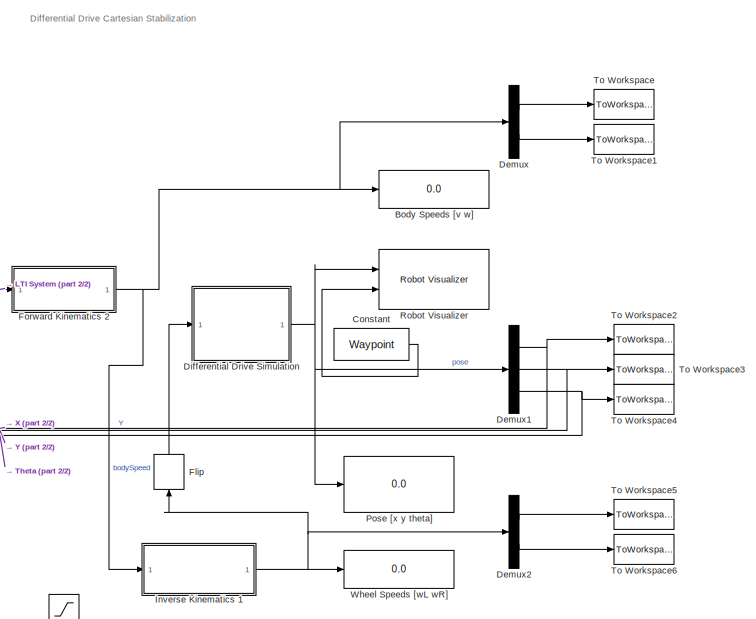
[diagram: root canvas - part 1/2, right side, full height]
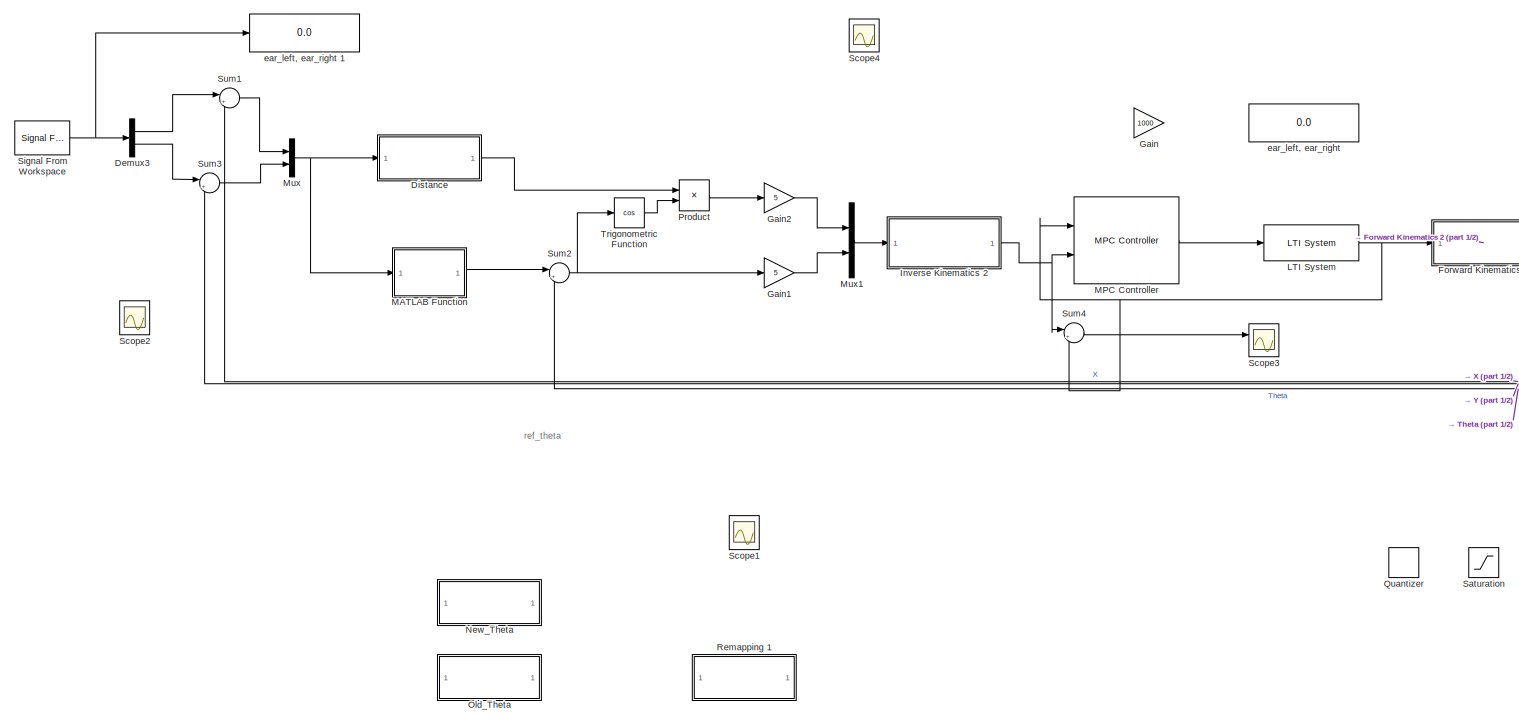
[diagram: root canvas - part 2/2, center side, full height]
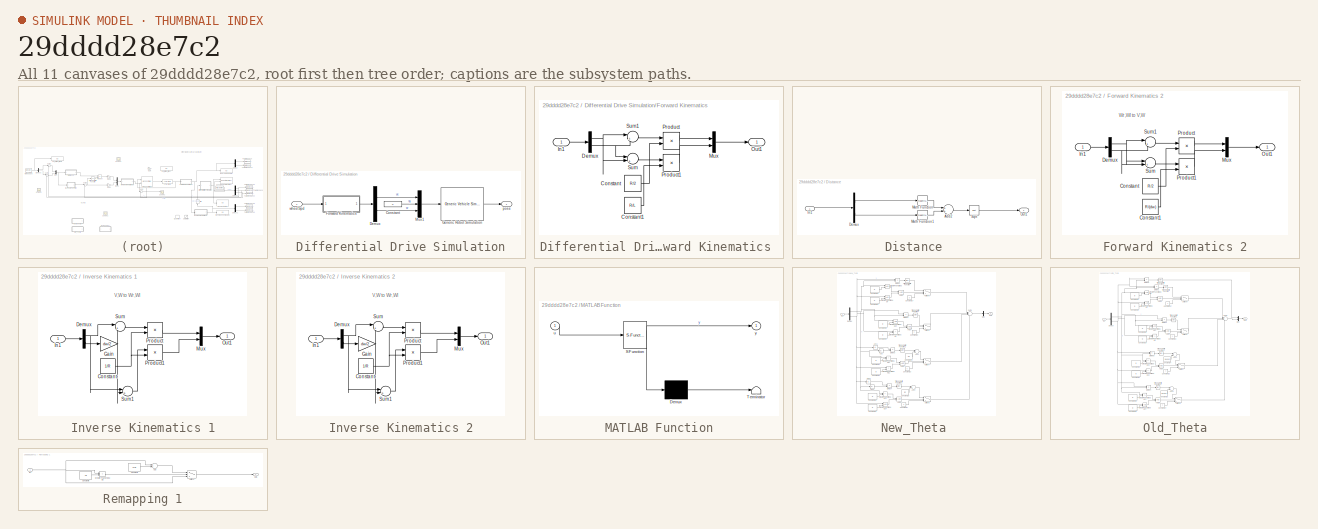
[diagram: thumbnail index - all 11 canvases of the model, root first then tree order]
MODEL slx_29dddd28e7c2
KIND model
CONFIG AbsTol = auto
CONFIG EnableMultiTasking = on
CONFIG FixedStep = 0.01
CONFIG MaxStep = auto
CONFIG MinStep = auto
CONFIG PreLoadFcn = sampleTime = 0.05;\n\n% Vehicle Parameters\nR = 0.1;\nL = 0.5;
CONFIG RelTol = 1e-3
CONFIG SampleTimeConstraint = Unconstrained
CONFIG Solver = VariableStepAuto
CONFIG SolverName = VariableStepAuto
CONFIG StartTime = 0.0
CONFIG StopTime = inf
BLOCK [Display] Body Speeds [v w]
  Decimation = 1
  Ports = [1]
BLOCK [Constant] Constant
  SampleTime = sampleTime
  Value = Waypoint
BLOCK [Demux] Demux
  DisplayOption = bar
  Outputs = 2
  Ports = [1, 2]
BLOCK [Demux] Demux1
  DisplayOption = bar
  Outputs = 3
  Ports = [1, 3]
BLOCK [Demux] Demux2
  DisplayOption = bar
  Outputs = 2
  Ports = [1, 2]
BLOCK [Demux] Demux3
  DisplayOption = bar
  Outputs = 2
  Ports = [1, 2]
BLOCK [SubSystem] Differential Drive Simulation
  AncestorBlock = mobileRoboticsLib/Kinematic Models/Differential Drive/Differential Drive Simulation
  OverrideUsingVariant = mode==2
  Ports = [1, 1]
  RequestExecContextInheritance = off
BLOCK [Constant] Differential Drive Simulation/Constant
  Value = 0
BLOCK [Demux] Differential Drive Simulation/Demux
  DisplayOption = bar
  Outputs = 2
  Ports = [1, 2]
BLOCK [SubSystem] Differential Drive Simulation/Forward Kinematics 
  Ports = [1, 1]
  RequestExecContextInheritance = off
BLOCK [Constant] Differential Drive Simulation/Forward Kinematics /Constant
  Value = R/2
BLOCK [Constant] Differential Drive Simulation/Forward Kinematics /Constant1
  Value = R/L
BLOCK [Demux] Differential Drive Simulation/Forward Kinematics /Demux
  DisplayOption = bar
  Outputs = 2
  Ports = [1, 2]
BLOCK [Inport] Differential Drive Simulation/Forward Kinematics /In1
  IconDisplay = Port number
BLOCK [Mux] Differential Drive Simulation/Forward Kinematics /Mux
  DisplayOption = bar
  Inputs = 2
  Ports = [2, 1]
BLOCK [Outport] Differential Drive Simulation/Forward Kinematics /Out1
  IconDisplay = Port number
BLOCK [Product] Differential Drive Simulation/Forward Kinematics /Product
  InputSameDT = off
  OutDataTypeStr = Inherit: Inherit via internal rule
  Ports = [2, 1]
  RndMeth = Floor
  SaturateOnIntegerOverflow = off
BLOCK [Product] Differential Drive Simulation/Forward Kinematics /Product1
  InputSameDT = off
  OutDataTypeStr = Inherit: Inherit via internal rule
  Ports = [2, 1]
  RndMeth = Floor
  SaturateOnIntegerOverflow = off
BLOCK [Sum] Differential Drive Simulation/Forward Kinematics /Sum
  IconShape = round
  InputSameDT = off
  Inputs = |+-
  OutDataTypeStr = Inherit: Inherit via internal rule
  Ports = [2, 1]
  SaturateOnIntegerOverflow = off
BLOCK [Sum] Differential Drive Simulation/Forward Kinematics /Sum1
  IconShape = round
  InputSameDT = off
  Inputs = |++
  OutDataTypeStr = Inherit: Inherit via internal rule
  Ports = [2, 1]
  SaturateOnIntegerOverflow = off
BLOCK [Reference] Differential Drive Simulation/Generic Robot Simulation  REF=mobileRoboticsLib/Utilities/Generic Vehicle Simulation
  Ports = [1, 1]
  SourceBlock = mobileRoboticsLib/Utilities/Generic Vehicle Simulation
  SourceProductName = Mobile Robotics Simulation Toolbox
  SourceType = Generic Vehicle Simulation
BLOCK [Mux] Differential Drive Simulation/Mux1
  DisplayOption = bar
  Inputs = 3
  Ports = [3, 1]
BLOCK [Outport] Differential Drive Simulation/pose
  IconDisplay = Port number
BLOCK [Inport] Differential Drive Simulation/wheelSpd
  IconDisplay = Port number
BLOCK [SubSystem] Distance 
  Ports = [1, 1]
  RequestExecContextInheritance = off
BLOCK [Sum] Distance /Add2
  InputSameDT = off
  OutDataTypeStr = Inherit: Inherit via internal rule
  Ports = [2, 1]
  SaturateOnIntegerOverflow = off
BLOCK [Demux] Distance /Demux
  DisplayOption = bar
  Outputs = 2
  Ports = [1, 2]
BLOCK [Inport] Distance /In1
  IconDisplay = Port number
BLOCK [Math] Distance /Math Function
  Operator = magnitude^2
  Ports = [1, 1]
BLOCK [Math] Distance /Math Function1
  Operator = magnitude^2
  Ports = [1, 1]
BLOCK [Outport] Distance /Out1
  IconDisplay = Port number
BLOCK [Sqrt] Distance /Sqrt
BLOCK [DSPFlip] Flip
BLOCK [SubSystem] Forward Kinematics 2
  Ports = [1, 1]
  RequestExecContextInheritance = off
BLOCK [Constant] Forward Kinematics 2/Constant
  Value = R/2
BLOCK [Constant] Forward Kinematics 2/Constant1
  Value = R/(dw)
BLOCK [Demux] Forward Kinematics 2/Demux
  DisplayOption = bar
  Outputs = 2
  Ports = [1, 2]
BLOCK [Inport] Forward Kinematics 2/In1
  IconDisplay = Port number
BLOCK [Mux] Forward Kinematics 2/Mux
  DisplayOption = bar
  Inputs = 2
  Ports = [2, 1]
BLOCK [Outport] Forward Kinematics 2/Out1
  IconDisplay = Port number
BLOCK [Product] Forward Kinematics 2/Product
  InputSameDT = off
  OutDataTypeStr = Inherit: Inherit via internal rule
  Ports = [2, 1]
  RndMeth = Floor
  SaturateOnIntegerOverflow = off
BLOCK [Product] Forward Kinematics 2/Product1
  InputSameDT = off
  OutDataTypeStr = Inherit: Inherit via internal rule
  Ports = [2, 1]
  RndMeth = Floor
  SaturateOnIntegerOverflow = off
BLOCK [Sum] Forward Kinematics 2/Sum
  IconShape = round
  InputSameDT = off
  Inputs = |+-
  OutDataTypeStr = Inherit: Inherit via internal rule
  Ports = [2, 1]
  SaturateOnIntegerOverflow = off
BLOCK [Sum] Forward Kinematics 2/Sum1
  IconShape = round
  InputSameDT = off
  Inputs = |++
  OutDataTypeStr = Inherit: Inherit via internal rule
  Ports = [2, 1]
  SaturateOnIntegerOverflow = off
BLOCK [Gain] Gain
  Gain = 1000
  OutDataTypeStr = Inherit: Inherit via internal rule
  ParamDataTypeStr = Inherit: Inherit via internal rule
  SaturateOnIntegerOverflow = off
BLOCK [Gain] Gain1
  Gain = 5
  OutDataTypeStr = Inherit: Inherit via internal rule
  ParamDataTypeStr = Inherit: Inherit via internal rule
  SaturateOnIntegerOverflow = off
BLOCK [Gain] Gain2
  Gain = 5
  OutDataTypeStr = Inherit: Inherit via internal rule
  ParamDataTypeStr = Inherit: Inherit via internal rule
  SaturateOnIntegerOverflow = off
BLOCK [SubSystem] Inverse Kinematics 1
  Ports = [1, 1]
  RequestExecContextInheritance = off
BLOCK [Constant] Inverse Kinematics 1/Constant
  Value = 1/R
BLOCK [Demux] Inverse Kinematics 1/Demux
  DisplayOption = bar
  Outputs = 2
  Ports = [1, 2]
BLOCK [Gain] Inverse Kinematics 1/Gain
  Gain = dw/2
  OutDataTypeStr = Inherit: Inherit via internal rule
  ParamDataTypeStr = Inherit: Inherit via internal rule
  SaturateOnIntegerOverflow = off
BLOCK [Inport] Inverse Kinematics 1/In1
  IconDisplay = Port number
BLOCK [Mux] Inverse Kinematics 1/Mux
  DisplayOption = bar
  Inputs = 2
  Ports = [2, 1]
BLOCK [Outport] Inverse Kinematics 1/Out1
  IconDisplay = Port number
BLOCK [Product] Inverse Kinematics 1/Product
  InputSameDT = off
  OutDataTypeStr = Inherit: Inherit via internal rule
  Ports = [2, 1]
  RndMeth = Floor
  SaturateOnIntegerOverflow = off
BLOCK [Product] Inverse Kinematics 1/Product1
  InputSameDT = off
  OutDataTypeStr = Inherit: Inherit via internal rule
  Ports = [2, 1]
  RndMeth = Floor
  SaturateOnIntegerOverflow = off
BLOCK [Sum] Inverse Kinematics 1/Sum
  IconShape = round
  InputSameDT = off
  Inputs = |++
  OutDataTypeStr = Inherit: Inherit via internal rule
  Ports = [2, 1]
  SaturateOnIntegerOverflow = off
BLOCK [Sum] Inverse Kinematics 1/Sum1
  IconShape = round
  InputSameDT = off
  Inputs = |+-
  OutDataTypeStr = Inherit: Inherit via internal rule
  Ports = [2, 1]
  SaturateOnIntegerOverflow = off
BLOCK [SubSystem] Inverse Kinematics 2
  Ports = [1, 1]
  RequestExecContextInheritance = off
BLOCK [Constant] Inverse Kinematics 2/Constant
  Value = 1/R
BLOCK [Demux] Inverse Kinematics 2/Demux
  DisplayOption = bar
  Outputs = 2
  Ports = [1, 2]
BLOCK [Gain] Inverse Kinematics 2/Gain
  Gain = dw/2
  OutDataTypeStr = Inherit: Inherit via internal rule
  ParamDataTypeStr = Inherit: Inherit via internal rule
  SaturateOnIntegerOverflow = off
BLOCK [Inport] Inverse Kinematics 2/In1
  IconDisplay = Port number
BLOCK [Mux] Inverse Kinematics 2/Mux
  DisplayOption = bar
  Inputs = 2
  Ports = [2, 1]
BLOCK [Outport] Inverse Kinematics 2/Out1
  IconDisplay = Port number
BLOCK [Product] Inverse Kinematics 2/Product
  InputSameDT = off
  OutDataTypeStr = Inherit: Inherit via internal rule
  Ports = [2, 1]
  RndMeth = Floor
  SaturateOnIntegerOverflow = off
BLOCK [Product] Inverse Kinematics 2/Product1
  InputSameDT = off
  OutDataTypeStr = Inherit: Inherit via internal rule
  Ports = [2, 1]
  RndMeth = Floor
  SaturateOnIntegerOverflow = off
BLOCK [Sum] Inverse Kinematics 2/Sum
  IconShape = round
  InputSameDT = off
  Inputs = |++
  OutDataTypeStr = Inherit: Inherit via internal rule
  Ports = [2, 1]
  SaturateOnIntegerOverflow = off
BLOCK [Sum] Inverse Kinematics 2/Sum1
  IconShape = round
  InputSameDT = off
  Inputs = |+-
  OutDataTypeStr = Inherit: Inherit via internal rule
  Ports = [2, 1]
  SaturateOnIntegerOverflow = off
BLOCK [Reference] LTI System  REF=cstblocks/LTI System
  Ports = [1, 1]
  SourceBlock = cstblocks/LTI System
  SourceProductBaseCode = CT
  SourceProductName = Control System Toolbox
  SourceType = LTI Block
BLOCK [SubSystem] MATLAB Function
  ErrorFcn = Stateflow.Translate.translate
  PermitHierarchicalResolution = ExplicitOnly
  Ports = [1, 1]
  RequestExecContextInheritance = off
  SFBlockType = MATLAB Function
  TreatAsAtomicUnit = on
BLOCK [Demux] MATLAB Function/ Demux 
  Outputs = 1
  Ports = [1, 1]
BLOCK [S-Function] MATLAB Function/ SFunction 
  EnableBusSupport = on
  FunctionName = sf_sfun
  PortCounts = [1 2]
  Ports = [1, 2]
  SFcnIsStateOwnerBlock = off
  SFunctionDeploymentMode = off
  Tag = Stateflow S-Function Cartesian_MPC 2
BLOCK [Terminator] MATLAB Function/ Terminator 
BLOCK [Inport] MATLAB Function/u
  IconDisplay = Port number
BLOCK [Outport] MATLAB Function/y
  IconDisplay = Port number
BLOCK [Reference] MPC Controller  REF=mpclib/MPC Controller  (lib defined in mdl_ae329e0e0455)
  Ports = [2, 1]
  SCDEnableBlockLinearizationSpecification = on
  SourceBlock = mpclib/MPC Controller
  SourceProductBaseCode = MP
  SourceProductName = Model Predictive Control Toolbox
  SourceType = MPC
BLOCK [Mux] Mux
  DisplayOption = bar
  Inputs = 2
  Ports = [2, 1]
BLOCK [Mux] Mux1
  DisplayOption = bar
  Inputs = 2
  Ports = [2, 1]
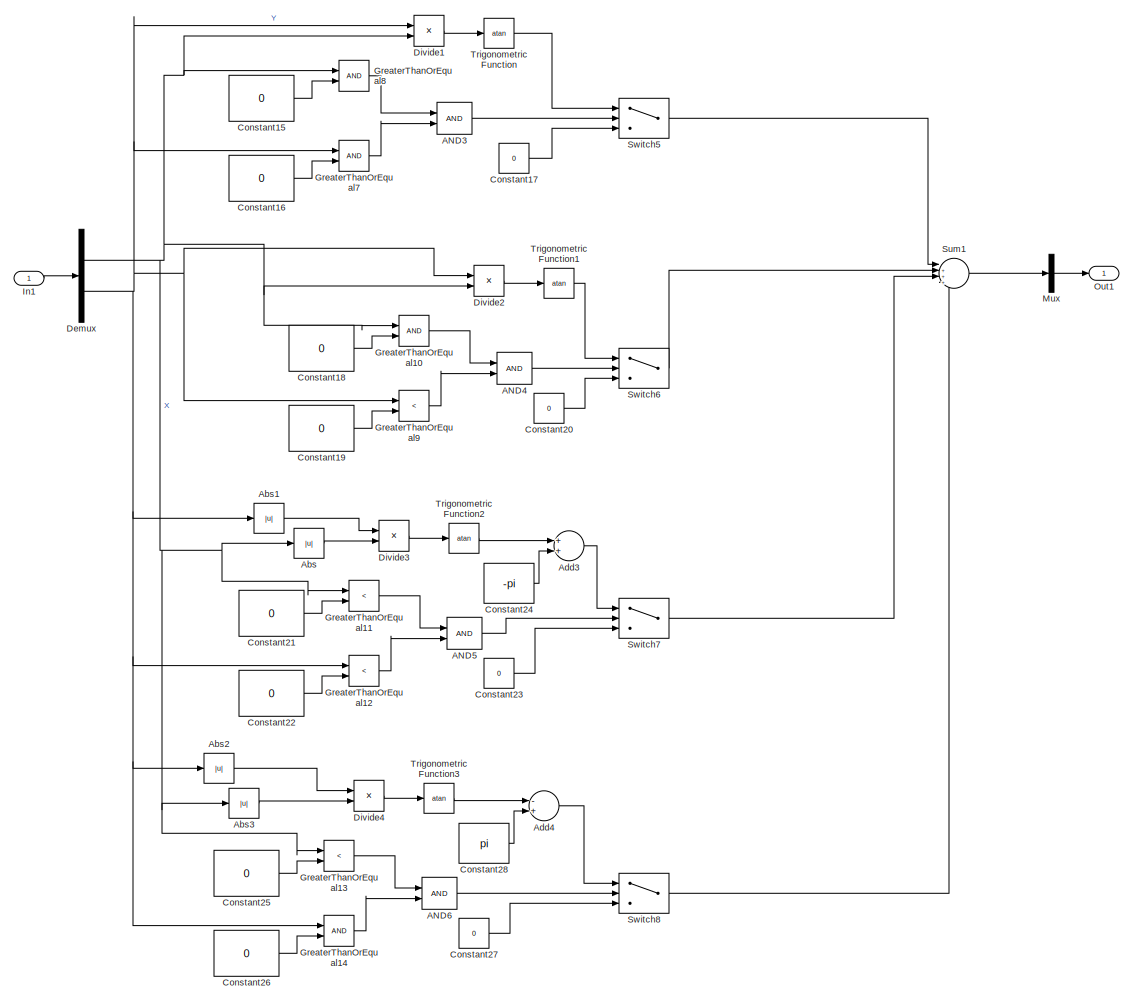
[diagram: New_Theta  - part 1/1, most of the canvas]
BLOCK [SubSystem] New_Theta 
  Ports = [1, 1]
  RequestExecContextInheritance = off
BLOCK [Logic] New_Theta /AND3
  AllPortsSameDT = off
  IconShape = distinctive
  OutDataTypeStr = boolean
  Ports = [2, 1]
BLOCK [Logic] New_Theta /AND4
  AllPortsSameDT = off
  IconShape = distinctive
  OutDataTypeStr = boolean
  Ports = [2, 1]
BLOCK [Logic] New_Theta /AND5
  AllPortsSameDT = off
  IconShape = distinctive
  OutDataTypeStr = boolean
  Ports = [2, 1]
BLOCK [Logic] New_Theta /AND6
  AllPortsSameDT = off
  IconShape = distinctive
  OutDataTypeStr = boolean
  Ports = [2, 1]
BLOCK [Abs] New_Theta /Abs
  SaturateOnIntegerOverflow = off
BLOCK [Abs] New_Theta /Abs1
  SaturateOnIntegerOverflow = off
BLOCK [Abs] New_Theta /Abs2
  SaturateOnIntegerOverflow = off
BLOCK [Abs] New_Theta /Abs3
  SaturateOnIntegerOverflow = off
BLOCK [Sum] New_Theta /Add3
  InputSameDT = off
  OutDataTypeStr = Inherit: Inherit via internal rule
  Ports = [2, 1]
  SaturateOnIntegerOverflow = off
BLOCK [Sum] New_Theta /Add4
  InputSameDT = off
  Inputs = -+
  OutDataTypeStr = Inherit: Inherit via internal rule
  Ports = [2, 1]
  SaturateOnIntegerOverflow = off
BLOCK [Constant] New_Theta /Constant15
  Value = 0
BLOCK [Constant] New_Theta /Constant16
  Value = 0
BLOCK [Constant] New_Theta /Constant17
  Value = 0
BLOCK [Constant] New_Theta /Constant18
  Value = 0
BLOCK [Constant] New_Theta /Constant19
  Value = 0
BLOCK [Constant] New_Theta /Constant20
  Value = 0
BLOCK [Constant] New_Theta /Constant21
  Value = 0
BLOCK [Constant] New_Theta /Constant22
  Value = 0
BLOCK [Constant] New_Theta /Constant23
  Value = 0
BLOCK [Constant] New_Theta /Constant24
  Value = -pi
BLOCK [Constant] New_Theta /Constant25
  Value = 0
BLOCK [Constant] New_Theta /Constant26
  Value = 0
BLOCK [Constant] New_Theta /Constant27
  Value = 0
BLOCK [Constant] New_Theta /Constant28
  Value = pi
BLOCK [Demux] New_Theta /Demux
  DisplayOption = bar
  Outputs = 2
  Ports = [1, 2]
BLOCK [Product] New_Theta /Divide1
  InputSameDT = off
  Inputs = */
  OutDataTypeStr = Inherit: Inherit via internal rule
  Ports = [2, 1]
  RndMeth = Floor
  SaturateOnIntegerOverflow = off
BLOCK [Product] New_Theta /Divide2
  InputSameDT = off
  Inputs = */
  OutDataTypeStr = Inherit: Inherit via internal rule
  Ports = [2, 1]
  RndMeth = Floor
  SaturateOnIntegerOverflow = off
BLOCK [Product] New_Theta /Divide3
  InputSameDT = off
  Inputs = */
  OutDataTypeStr = Inherit: Inherit via internal rule
  Ports = [2, 1]
  RndMeth = Floor
  SaturateOnIntegerOverflow = off
BLOCK [Product] New_Theta /Divide4
  InputSameDT = off
  Inputs = */
  OutDataTypeStr = Inherit: Inherit via internal rule
  Ports = [2, 1]
  RndMeth = Floor
  SaturateOnIntegerOverflow = off
BLOCK [RelationalOperator] New_Theta /GreaterThanOrEqual10
  InputSameDT = off
  OutDataTypeStr = boolean
  Ports = [2, 1]
  RndMeth = Simplest
BLOCK [RelationalOperator] New_Theta /GreaterThanOrEqual11
  InputSameDT = off
  Operator = <
  OutDataTypeStr = boolean
  Ports = [2, 1]
  RndMeth = Simplest
BLOCK [RelationalOperator] New_Theta /GreaterThanOrEqual12
  InputSameDT = off
  Operator = <
  OutDataTypeStr = boolean
  Ports = [2, 1]
  RndMeth = Simplest
BLOCK [RelationalOperator] New_Theta /GreaterThanOrEqual13
  InputSameDT = off
  Operator = <
  OutDataTypeStr = boolean
  Ports = [2, 1]
  RndMeth = Simplest
BLOCK [RelationalOperator] New_Theta /GreaterThanOrEqual14
  InputSameDT = off
  OutDataTypeStr = boolean
  Ports = [2, 1]
  RndMeth = Simplest
BLOCK [RelationalOperator] New_Theta /GreaterThanOrEqual7
  InputSameDT = off
  OutDataTypeStr = boolean
  Ports = [2, 1]
  RndMeth = Simplest
BLOCK [RelationalOperator] New_Theta /GreaterThanOrEqual8
  InputSameDT = off
  OutDataTypeStr = boolean
  Ports = [2, 1]
  RndMeth = Simplest
BLOCK [RelationalOperator] New_Theta /GreaterThanOrEqual9
  InputSameDT = off
  Operator = <
  OutDataTypeStr = boolean
  Ports = [2, 1]
  RndMeth = Simplest
BLOCK [Inport] New_Theta /In1
  IconDisplay = Port number
BLOCK [Mux] New_Theta /Mux
  DisplayOption = bar
  Inputs = 1
  Ports = [1, 1]
BLOCK [Outport] New_Theta /Out1
  IconDisplay = Port number
BLOCK [Sum] New_Theta /Sum1
  IconShape = round
  InputSameDT = off
  Inputs = |++++
  OutDataTypeStr = Inherit: Inherit via internal rule
  Ports = [4, 1]
  SaturateOnIntegerOverflow = off
BLOCK [Switch] New_Theta /Switch5
  Criteria = u2 > Threshold
  InputSameDT = off
  SaturateOnIntegerOverflow = off
BLOCK [Switch] New_Theta /Switch6
  Criteria = u2 > Threshold
  InputSameDT = off
  SaturateOnIntegerOverflow = off
BLOCK [Switch] New_Theta /Switch7
  Criteria = u2 > Threshold
  InputSameDT = off
  SaturateOnIntegerOverflow = off
BLOCK [Switch] New_Theta /Switch8
  Criteria = u2 > Threshold
  InputSameDT = off
  SaturateOnIntegerOverflow = off
BLOCK [Trigonometry] New_Theta /Trigonometric Function
  Operator = atan
  Ports = [1, 1]
BLOCK [Trigonometry] New_Theta /Trigonometric Function1
  Operator = atan
  Ports = [1, 1]
BLOCK [Trigonometry] New_Theta /Trigonometric Function2
  Operator = atan
  Ports = [1, 1]
BLOCK [Trigonometry] New_Theta /Trigonometric Function3
  Operator = atan
  Ports = [1, 1]
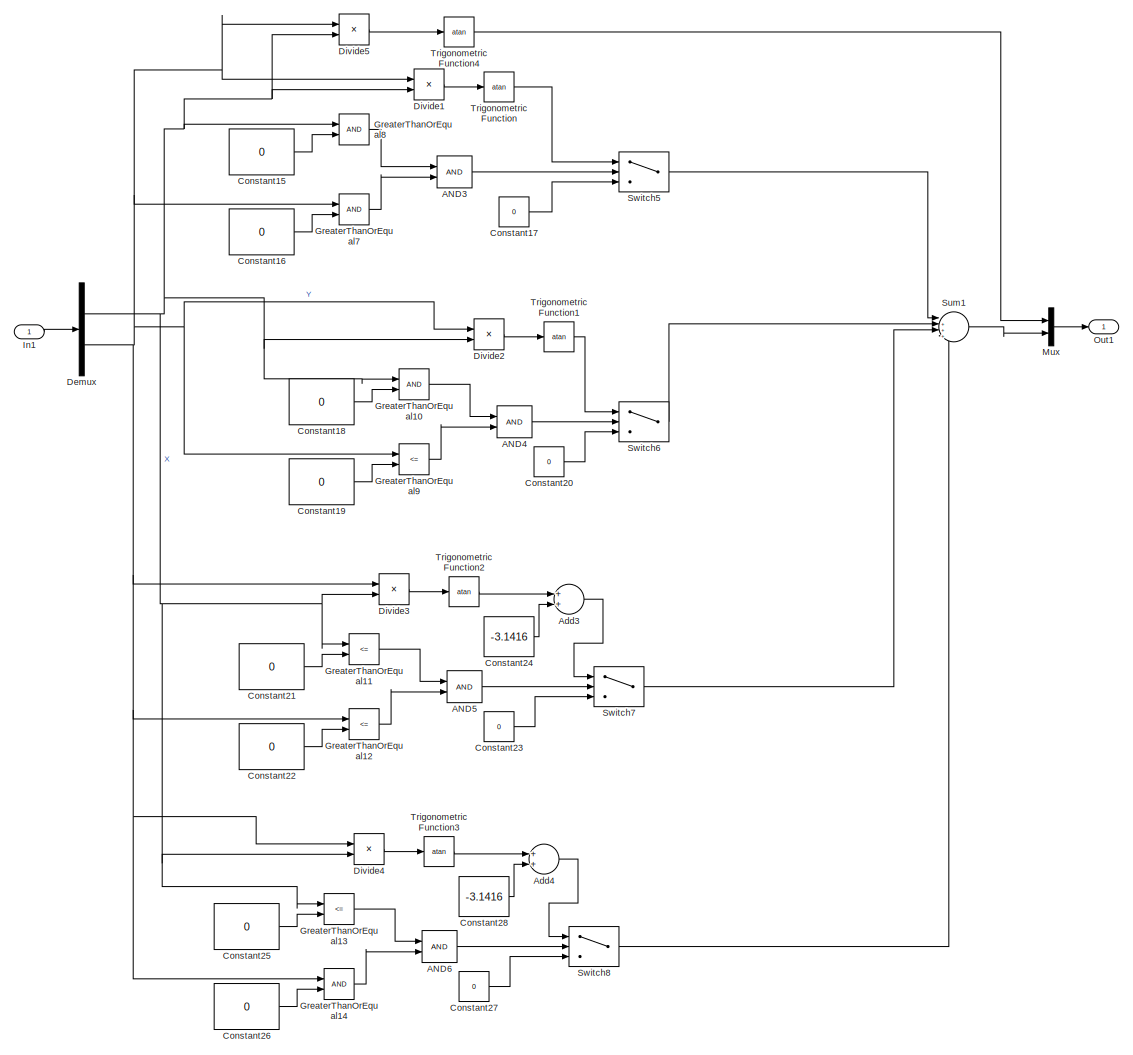
[diagram: Old_Theta - part 1/1, most of the canvas]
BLOCK [SubSystem] Old_Theta
  Ports = [1, 1]
  RequestExecContextInheritance = off
BLOCK [Logic] Old_Theta/AND3
  AllPortsSameDT = off
  IconShape = distinctive
  OutDataTypeStr = boolean
  Ports = [2, 1]
BLOCK [Logic] Old_Theta/AND4
  AllPortsSameDT = off
  IconShape = distinctive
  OutDataTypeStr = boolean
  Ports = [2, 1]
BLOCK [Logic] Old_Theta/AND5
  AllPortsSameDT = off
  IconShape = distinctive
  OutDataTypeStr = boolean
  Ports = [2, 1]
BLOCK [Logic] Old_Theta/AND6
  AllPortsSameDT = off
  IconShape = distinctive
  OutDataTypeStr = boolean
  Ports = [2, 1]
BLOCK [Sum] Old_Theta/Add3
  InputSameDT = off
  OutDataTypeStr = Inherit: Inherit via internal rule
  Ports = [2, 1]
  SaturateOnIntegerOverflow = off
BLOCK [Sum] Old_Theta/Add4
  InputSameDT = off
  OutDataTypeStr = Inherit: Inherit via internal rule
  Ports = [2, 1]
  SaturateOnIntegerOverflow = off
BLOCK [Constant] Old_Theta/Constant15
  Value = 0
BLOCK [Constant] Old_Theta/Constant16
  Value = 0
BLOCK [Constant] Old_Theta/Constant17
  Value = 0
BLOCK [Constant] Old_Theta/Constant18
  Value = 0
BLOCK [Constant] Old_Theta/Constant19
  Value = 0
BLOCK [Constant] Old_Theta/Constant20
  Value = 0
BLOCK [Constant] Old_Theta/Constant21
  Value = 0
BLOCK [Constant] Old_Theta/Constant22
  Value = 0
BLOCK [Constant] Old_Theta/Constant23
  Value = 0
BLOCK [Constant] Old_Theta/Constant24
  Value = -3.1416
BLOCK [Constant] Old_Theta/Constant25
  Value = 0
BLOCK [Constant] Old_Theta/Constant26
  Value = 0
BLOCK [Constant] Old_Theta/Constant27
  Value = 0
BLOCK [Constant] Old_Theta/Constant28
  Value = -3.1416
BLOCK [Demux] Old_Theta/Demux
  DisplayOption = bar
  Outputs = 2
  Ports = [1, 2]
BLOCK [Product] Old_Theta/Divide1
  InputSameDT = off
  Inputs = */
  OutDataTypeStr = Inherit: Inherit via internal rule
  Ports = [2, 1]
  RndMeth = Floor
  SaturateOnIntegerOverflow = off
BLOCK [Product] Old_Theta/Divide2
  InputSameDT = off
  Inputs = */
  OutDataTypeStr = Inherit: Inherit via internal rule
  Ports = [2, 1]
  RndMeth = Floor
  SaturateOnIntegerOverflow = off
BLOCK [Product] Old_Theta/Divide3
  InputSameDT = off
  Inputs = */
  OutDataTypeStr = Inherit: Inherit via internal rule
  Ports = [2, 1]
  RndMeth = Floor
  SaturateOnIntegerOverflow = off
BLOCK [Product] Old_Theta/Divide4
  InputSameDT = off
  Inputs = */
  OutDataTypeStr = Inherit: Inherit via internal rule
  Ports = [2, 1]
  RndMeth = Floor
  SaturateOnIntegerOverflow = off
BLOCK [Product] Old_Theta/Divide5
  InputSameDT = off
  Inputs = */
  OutDataTypeStr = Inherit: Inherit via internal rule
  Ports = [2, 1]
  RndMeth = Floor
  SaturateOnIntegerOverflow = off
BLOCK [RelationalOperator] Old_Theta/GreaterThanOrEqual10
  InputSameDT = off
  OutDataTypeStr = boolean
  Ports = [2, 1]
  RndMeth = Simplest
BLOCK [RelationalOperator] Old_Theta/GreaterThanOrEqual11
  InputSameDT = off
  Operator = <=
  OutDataTypeStr = boolean
  Ports = [2, 1]
  RndMeth = Simplest
BLOCK [RelationalOperator] Old_Theta/GreaterThanOrEqual12
  InputSameDT = off
  Operator = <=
  OutDataTypeStr = boolean
  Ports = [2, 1]
  RndMeth = Simplest
BLOCK [RelationalOperator] Old_Theta/GreaterThanOrEqual13
  InputSameDT = off
  Operator = <=
  OutDataTypeStr = boolean
  Ports = [2, 1]
  RndMeth = Simplest
BLOCK [RelationalOperator] Old_Theta/GreaterThanOrEqual14
  InputSameDT = off
  OutDataTypeStr = boolean
  Ports = [2, 1]
  RndMeth = Simplest
BLOCK [RelationalOperator] Old_Theta/GreaterThanOrEqual7
  InputSameDT = off
  OutDataTypeStr = boolean
  Ports = [2, 1]
  RndMeth = Simplest
BLOCK [RelationalOperator] Old_Theta/GreaterThanOrEqual8
  InputSameDT = off
  OutDataTypeStr = boolean
  Ports = [2, 1]
  RndMeth = Simplest
BLOCK [RelationalOperator] Old_Theta/GreaterThanOrEqual9
  InputSameDT = off
  Operator = <=
  OutDataTypeStr = boolean
  Ports = [2, 1]
  RndMeth = Simplest
BLOCK [Inport] Old_Theta/In1
  IconDisplay = Port number
BLOCK [Mux] Old_Theta/Mux
  DisplayOption = bar
  Inputs = 2
  Ports = [2, 1]
BLOCK [Outport] Old_Theta/Out1
  IconDisplay = Port number
BLOCK [Sum] Old_Theta/Sum1
  IconShape = round
  InputSameDT = off
  Inputs = |++++
  OutDataTypeStr = Inherit: Inherit via internal rule
  Ports = [4, 1]
  SaturateOnIntegerOverflow = off
BLOCK [Switch] Old_Theta/Switch5
  Criteria = u2 > Threshold
  InputSameDT = off
  SaturateOnIntegerOverflow = off
BLOCK [Switch] Old_Theta/Switch6
  Criteria = u2 > Threshold
  InputSameDT = off
  SaturateOnIntegerOverflow = off
BLOCK [Switch] Old_Theta/Switch7
  Criteria = u2 > Threshold
  InputSameDT = off
  SaturateOnIntegerOverflow = off
BLOCK [Switch] Old_Theta/Switch8
  Criteria = u2 > Threshold
  InputSameDT = off
  SaturateOnIntegerOverflow = off
BLOCK [Trigonometry] Old_Theta/Trigonometric Function
  Operator = atan
  Ports = [1, 1]
BLOCK [Trigonometry] Old_Theta/Trigonometric Function1
  Operator = atan
  Ports = [1, 1]
BLOCK [Trigonometry] Old_Theta/Trigonometric Function2
  Operator = atan
  Ports = [1, 1]
BLOCK [Trigonometry] Old_Theta/Trigonometric Function3
  Operator = atan
  Ports = [1, 1]
BLOCK [Trigonometry] Old_Theta/Trigonometric Function4
  Operator = atan
  Ports = [1, 1]
BLOCK [Display] Pose [x y theta]
  Decimation = 1
  Ports = [1]
BLOCK [Product] Product
  InputSameDT = off
  OutDataTypeStr = Inherit: Inherit via internal rule
  Ports = [2, 1]
  RndMeth = Floor
  SaturateOnIntegerOverflow = off
BLOCK [Quantizer] Quantizer
BLOCK [SubSystem] Remapping 1
  Ports = [1, 1]
  RequestExecContextInheritance = off
BLOCK [Sum] Remapping 1/Add
  InputSameDT = off
  OutDataTypeStr = Inherit: Inherit via internal rule
  Ports = [2, 1]
  SaturateOnIntegerOverflow = off
BLOCK [Constant] Remapping 1/Constant1
  Value = 2*pi
BLOCK [Constant] Remapping 1/Constant5
  Value = -pi
BLOCK [RelationalOperator] Remapping 1/GreaterThanOrEqual2
  InputSameDT = off
  Operator = <
  OutDataTypeStr = boolean
  Ports = [2, 1]
  RndMeth = Simplest
BLOCK [Inport] Remapping 1/In1
  IconDisplay = Port number
BLOCK [Outport] Remapping 1/Out1
  IconDisplay = Port number
BLOCK [Switch] Remapping 1/Switch4
  Criteria = u2 > Threshold
  InputSameDT = off
  SaturateOnIntegerOverflow = off
BLOCK [Reference] Robot Visualizer  REF=mobileRoboticsLib/Environments/Robot Visualizer
  Ports = [2]
  Priority = 99
  SourceBlock = mobileRoboticsLib/Environments/Robot Visualizer
  SourceProductName = Mobile Robotics Simulation Library
  SourceType = Visualizer2D
BLOCK [Saturate] Saturation
  InputPortMap = u0
  Ports = [1, 1]
BLOCK [Scope] Scope1
  Floating = off
  NumInputPorts = 3
  Ports = [3]
  ScopeSpecificationString = Simulink.scopes.TimeScopeBlockCfg('CurrentConfiguration', extmgr.ConfigurationSet(extmgr.Configuration('Core','General UI',true),extmgr.Configuration('Core','Source UI',true),extmgr.Configuration('Sources','WiredSimulink',true,'DataLoggingVariableName','ScopeData1'),extmgr.Configuration('Visuals','Time Domain',true,'SerializedDisplays',{struct('MinYLimReal','-3.57005','MaxYLimReal','0.3855','YLabe...<+1497ch>
BLOCK [Scope] Scope2
  Floating = off
  NumInputPorts = 4
  Ports = [4]
  ScopeSpecificationString = Simulink.scopes.TimeScopeBlockCfg('CurrentConfiguration', extmgr.ConfigurationSet(extmgr.Configuration('Core','General UI',true),extmgr.Configuration('Core','Source UI',true),extmgr.Configuration('Sources','WiredSimulink',true,'DataLoggingVariableName','ScopeData1'),extmgr.Configuration('Visuals','Time Domain',true,'SerializedDisplays',{struct('MinYLimReal','480.93761','MaxYLimReal','519.06239','Y...<+1473ch>
BLOCK [Scope] Scope3
  Floating = off
  NumInputPorts = 2
  Ports = [2]
  ScopeSpecificationString = Simulink.scopes.TimeScopeBlockCfg('CurrentConfiguration', extmgr.ConfigurationSet(extmgr.Configuration('Core','General UI',true),extmgr.Configuration('Core','Source UI',true),extmgr.Configuration('Sources','WiredSimulink',true,'DataLoggingVariableName','ScopeData1'),extmgr.Configuration('Visuals','Time Domain',true,'SerializedDisplays',{struct('MinYLimReal','-11.18224','MaxYLimReal','17.90914','YL...<+1467ch>
BLOCK [Scope] Scope4
  Floating = off
  NumInputPorts = 2
  Ports = [2]
  ScopeSpecificationString = Simulink.scopes.TimeScopeBlockCfg('CurrentConfiguration', extmgr.ConfigurationSet(extmgr.Configuration('Core','General UI',true),extmgr.Configuration('Core','Source UI',true),extmgr.Configuration('Sources','WiredSimulink',true,'DataLoggingVariableName','ScopeData4'),extmgr.Configuration('Visuals','Time Domain',true,'SerializedDisplays',{struct('MinYLimReal','-5.55472','MaxYLimReal','2.93099','YLab...<+1451ch>
BLOCK [Reference] Signal From Workspace  REF=dspsrcs4/Signal From
Workspace
  Ports = [0, 1]
  SourceBlock = dspsrcs4/Signal From\nWorkspace
  SourceProductBaseCode = DS
  SourceProductName = DSP System Toolbox
  SourceType = Signal From Workspace
BLOCK [Sum] Sum1
  IconShape = round
  InputSameDT = off
  Inputs = |+-
  OutDataTypeStr = Inherit: Inherit via internal rule
  Ports = [2, 1]
  SaturateOnIntegerOverflow = off
BLOCK [Sum] Sum2
  IconShape = round
  InputSameDT = off
  Inputs = |+-
  OutDataTypeStr = Inherit: Inherit via internal rule
  Ports = [2, 1]
  SaturateOnIntegerOverflow = off
BLOCK [Sum] Sum3
  IconShape = round
  InputSameDT = off
  Inputs = |+-
  OutDataTypeStr = Inherit: Inherit via internal rule
  Ports = [2, 1]
  SaturateOnIntegerOverflow = off
BLOCK [Sum] Sum4
  IconShape = round
  InputSameDT = off
  Inputs = |+-
  OutDataTypeStr = Inherit: Inherit via internal rule
  Ports = [2, 1]
  SaturateOnIntegerOverflow = off
BLOCK [ToWorkspace] To Workspace
  FixptAsFi = on
  MaxDataPoints = inf
  Ports = [1]
  SampleTime = -1
  Save2DSignal = 3-D array (concatenate along third dimension)
  VariableName = v
BLOCK [ToWorkspace] To Workspace1
  FixptAsFi = on
  MaxDataPoints = inf
  Ports = [1]
  SampleTime = -1
  Save2DSignal = 3-D array (concatenate along third dimension)
  VariableName = w
BLOCK [ToWorkspace] To Workspace2
  FixptAsFi = on
  MaxDataPoints = inf
  Ports = [1]
  SampleTime = sampleTime
  Save2DSignal = 3-D array (concatenate along third dimension)
  VariableName = X
BLOCK [ToWorkspace] To Workspace3
  FixptAsFi = on
  MaxDataPoints = inf
  Ports = [1]
  SampleTime = -1
  Save2DSignal = 3-D array (concatenate along third dimension)
  VariableName = Y
BLOCK [ToWorkspace] To Workspace4
  FixptAsFi = on
  MaxDataPoints = inf
  Ports = [1]
  SampleTime = -1
  Save2DSignal = 3-D array (concatenate along third dimension)
  VariableName = theta
BLOCK [ToWorkspace] To Workspace5
  FixptAsFi = on
  MaxDataPoints = inf
  Ports = [1]
  SampleTime = -1
  Save2DSignal = 3-D array (concatenate along third dimension)
  VariableName = wL
BLOCK [ToWorkspace] To Workspace6
  FixptAsFi = on
  MaxDataPoints = inf
  Ports = [1]
  SampleTime = -1
  Save2DSignal = 3-D array (concatenate along third dimension)
  VariableName = wR
BLOCK [Trigonometry] Trigonometric Function
  Operator = cos
  Ports = [1, 1]
BLOCK [Display] Wheel Speeds [wL wR]
  Decimation = 1
  Ports = [1]
BLOCK [Display] ear_left, ear_right 
  Decimation = 1
  Ports = [1]
BLOCK [Display] ear_left, ear_right 1
  Decimation = 1
  Ports = [1]
ANNOTATION (root): Differential Drive Cartesian Stabilization
ANNOTATION (root): ref_theta
ANNOTATION Forward Kinematics 2: Wr,Wl to V,W
ANNOTATION Inverse Kinematics 1: V,W to Wr,Wl
ANNOTATION Inverse Kinematics 2: V,W to Wr,Wl
LINE Constant:1 -> Robot Visualizer:2
NET Demux1:1 -> Sum1:2, To Workspace2:1
NET Demux1:2 -> Sum3:2, To Workspace3:1
NET Demux1:3 -> Sum2:2, To Workspace4:1
LINE Demux2:1 -> To Workspace5:1
LINE Demux2:2 -> To Workspace6:1
LINE Demux3:1 -> Sum1:1
LINE Demux3:2 -> Sum3:1
LINE Demux:1 -> To Workspace:1
LINE Demux:2 -> To Workspace1:1
NET Differential Drive Simulation:1 -> Demux1:1, Pose [x y theta]:1, Robot Visualizer:1
LINE Distance /Add2:1 -> Distance /Sqrt:1
LINE Distance /Demux:1 -> Distance /Math Function:1
LINE Distance /Demux:2 -> Distance /Math Function1:1
LINE Distance /In1:1 -> Distance /Demux:1
LINE Distance /Math Function1:1 -> Distance /Add2:2
LINE Distance /Math Function:1 -> Distance /Add2:1
LINE Distance /Sqrt:1 -> Distance /Out1:1
LINE Distance :1 -> Product:1
LINE Flip:1 -> Differential Drive Simulation:1
LINE Forward Kinematics 2/Constant1:1 -> Forward Kinematics 2/Product1:2
LINE Forward Kinematics 2/Constant:1 -> Forward Kinematics 2/Product:2
NET Forward Kinematics 2/Demux:1 -> Forward Kinematics 2/Sum1:1, Forward Kinematics 2/Sum:1
NET Forward Kinematics 2/Demux:2 -> Forward Kinematics 2/Sum1:2, Forward Kinematics 2/Sum:2
LINE Forward Kinematics 2/In1:1 -> Forward Kinematics 2/Demux:1
LINE Forward Kinematics 2/Mux:1 -> Forward Kinematics 2/Out1:1
LINE Forward Kinematics 2/Product1:1 -> Forward Kinematics 2/Mux:2
LINE Forward Kinematics 2/Product:1 -> Forward Kinematics 2/Mux:1
LINE Forward Kinematics 2/Sum1:1 -> Forward Kinematics 2/Product:1
LINE Forward Kinematics 2/Sum:1 -> Forward Kinematics 2/Product1:1
NET Forward Kinematics 2:1 -> Body Speeds [v w]:1, Demux:1, Inverse Kinematics 1:1
LINE Gain1:1 -> Mux1:2
LINE Gain2:1 -> Mux1:1
NET Inverse Kinematics 1/Constant:1 -> Inverse Kinematics 1/Product1:2, Inverse Kinematics 1/Product:2
NET Inverse Kinematics 1/Demux:1 -> Inverse Kinematics 1/Sum1:1, Inverse Kinematics 1/Sum:1
LINE Inverse Kinematics 1/Demux:2 -> Inverse Kinematics 1/Gain:1
NET Inverse Kinematics 1/Gain:1 -> Inverse Kinematics 1/Sum1:2, Inverse Kinematics 1/Sum:2
LINE Inverse Kinematics 1/In1:1 -> Inverse Kinematics 1/Demux:1
LINE Inverse Kinematics 1/Mux:1 -> Inverse Kinematics 1/Out1:1
LINE Inverse Kinematics 1/Product1:1 -> Inverse Kinematics 1/Mux:2
LINE Inverse Kinematics 1/Product:1 -> Inverse Kinematics 1/Mux:1
LINE Inverse Kinematics 1/Sum1:1 -> Inverse Kinematics 1/Product1:1
LINE Inverse Kinematics 1/Sum:1 -> Inverse Kinematics 1/Product:1
NET Inverse Kinematics 1:1 -> Demux2:1, Flip:1, Wheel Speeds [wL wR]:1
NET Inverse Kinematics 2/Constant:1 -> Inverse Kinematics 2/Product1:2, Inverse Kinematics 2/Product:2
NET Inverse Kinematics 2/Demux:1 -> Inverse Kinematics 2/Sum1:1, Inverse Kinematics 2/Sum:1
LINE Inverse Kinematics 2/Demux:2 -> Inverse Kinematics 2/Gain:1
NET Inverse Kinematics 2/Gain:1 -> Inverse Kinematics 2/Sum1:2, Inverse Kinematics 2/Sum:2
LINE Inverse Kinematics 2/In1:1 -> Inverse Kinematics 2/Demux:1
LINE Inverse Kinematics 2/Mux:1 -> Inverse Kinematics 2/Out1:1
LINE Inverse Kinematics 2/Product1:1 -> Inverse Kinematics 2/Mux:2
LINE Inverse Kinematics 2/Product:1 -> Inverse Kinematics 2/Mux:1
LINE Inverse Kinematics 2/Sum1:1 -> Inverse Kinematics 2/Product1:1
LINE Inverse Kinematics 2/Sum:1 -> Inverse Kinematics 2/Product:1
NET Inverse Kinematics 2:1 -> MPC Controller:2, Sum4:1
NET LTI System:1 -> Forward Kinematics 2:1, MPC Controller:1, Sum4:2
LINE MATLAB Function:1 -> Sum2:1
LINE MPC Controller:1 -> LTI System:1
LINE Mux1:1 -> Inverse Kinematics 2:1
NET Mux:1 -> Distance :1, MATLAB Function:1
LINE New_Theta /AND3:1 -> New_Theta /Switch5:2
LINE New_Theta /AND4:1 -> New_Theta /Switch6:2
LINE New_Theta /AND5:1 -> New_Theta /Switch7:2
LINE New_Theta /AND6:1 -> New_Theta /Switch8:2
LINE New_Theta /Abs1:1 -> New_Theta /Divide3:1
LINE New_Theta /Abs2:1 -> New_Theta /Divide4:1
LINE New_Theta /Abs3:1 -> New_Theta /Divide4:2
LINE New_Theta /Abs:1 -> New_Theta /Divide3:2
LINE New_Theta /Add3:1 -> New_Theta /Switch7:1
LINE New_Theta /Add4:1 -> New_Theta /Switch8:1
LINE New_Theta /Constant15:1 -> New_Theta /GreaterThanOrEqual8:2
LINE New_Theta /Constant16:1 -> New_Theta /GreaterThanOrEqual7:2
LINE New_Theta /Constant17:1 -> New_Theta /Switch5:3
LINE New_Theta /Constant18:1 -> New_Theta /GreaterThanOrEqual10:2
LINE New_Theta /Constant19:1 -> New_Theta /GreaterThanOrEqual9:2
LINE New_Theta /Constant20:1 -> New_Theta /Switch6:3
LINE New_Theta /Constant21:1 -> New_Theta /GreaterThanOrEqual11:2
LINE New_Theta /Constant22:1 -> New_Theta /GreaterThanOrEqual12:2
LINE New_Theta /Constant23:1 -> New_Theta /Switch7:3
LINE New_Theta /Constant24:1 -> New_Theta /Add3:2
LINE New_Theta /Constant25:1 -> New_Theta /GreaterThanOrEqual13:2
LINE New_Theta /Constant26:1 -> New_Theta /GreaterThanOrEqual14:2
LINE New_Theta /Constant27:1 -> New_Theta /Switch8:3
LINE New_Theta /Constant28:1 -> New_Theta /Add4:2
NET New_Theta /Demux:1 -> New_Theta /Abs3:1, New_Theta /Abs:1, New_Theta /Divide1:2, New_Theta /Divide2:2, New_Theta /GreaterThanOrEqual10:1, New_Theta /GreaterThanOrEqual11:1, New_Theta /GreaterThanOrEqual13:1, New_Theta /GreaterThanOrEqual8:1
NET New_Theta /Demux:2 -> New_Theta /Abs1:1, New_Theta /Abs2:1, New_Theta /Divide1:1, New_Theta /Divide2:1, New_Theta /GreaterThanOrEqual12:1, New_Theta /GreaterThanOrEqual14:1, New_Theta /GreaterThanOrEqual7:1, New_Theta /GreaterThanOrEqual9:1
LINE New_Theta /Divide1:1 -> New_Theta /Trigonometric Function:1
LINE New_Theta /Divide2:1 -> New_Theta /Trigonometric Function1:1
LINE New_Theta /Divide3:1 -> New_Theta /Trigonometric Function2:1
LINE New_Theta /Divide4:1 -> New_Theta /Trigonometric Function3:1
LINE New_Theta /GreaterThanOrEqual10:1 -> New_Theta /AND4:1
LINE New_Theta /GreaterThanOrEqual11:1 -> New_Theta /AND5:1
LINE New_Theta /GreaterThanOrEqual12:1 -> New_Theta /AND5:2
LINE New_Theta /GreaterThanOrEqual13:1 -> New_Theta /AND6:1
LINE New_Theta /GreaterThanOrEqual14:1 -> New_Theta /AND6:2
LINE New_Theta /GreaterThanOrEqual7:1 -> New_Theta /AND3:2
LINE New_Theta /GreaterThanOrEqual8:1 -> New_Theta /AND3:1
LINE New_Theta /GreaterThanOrEqual9:1 -> New_Theta /AND4:2
LINE New_Theta /In1:1 -> New_Theta /Demux:1
LINE New_Theta /Mux:1 -> New_Theta /Out1:1
LINE New_Theta /Sum1:1 -> New_Theta /Mux:1
LINE New_Theta /Switch5:1 -> New_Theta /Sum1:1
LINE New_Theta /Switch6:1 -> New_Theta /Sum1:2
LINE New_Theta /Switch7:1 -> New_Theta /Sum1:3
LINE New_Theta /Switch8:1 -> New_Theta /Sum1:4
LINE New_Theta /Trigonometric Function1:1 -> New_Theta /Switch6:1
LINE New_Theta /Trigonometric Function2:1 -> New_Theta /Add3:1
LINE New_Theta /Trigonometric Function3:1 -> New_Theta /Add4:1
LINE New_Theta /Trigonometric Function:1 -> New_Theta /Switch5:1
LINE Old_Theta/AND3:1 -> Old_Theta/Switch5:2
LINE Old_Theta/AND4:1 -> Old_Theta/Switch6:2
LINE Old_Theta/AND5:1 -> Old_Theta/Switch7:2
LINE Old_Theta/AND6:1 -> Old_Theta/Switch8:2
LINE Old_Theta/Add3:1 -> Old_Theta/Switch7:1
LINE Old_Theta/Add4:1 -> Old_Theta/Switch8:1
LINE Old_Theta/Constant15:1 -> Old_Theta/GreaterThanOrEqual8:2
LINE Old_Theta/Constant16:1 -> Old_Theta/GreaterThanOrEqual7:2
LINE Old_Theta/Constant17:1 -> Old_Theta/Switch5:3
LINE Old_Theta/Constant18:1 -> Old_Theta/GreaterThanOrEqual10:2
LINE Old_Theta/Constant19:1 -> Old_Theta/GreaterThanOrEqual9:2
LINE Old_Theta/Constant20:1 -> Old_Theta/Switch6:3
LINE Old_Theta/Constant21:1 -> Old_Theta/GreaterThanOrEqual11:2
LINE Old_Theta/Constant22:1 -> Old_Theta/GreaterThanOrEqual12:2
LINE Old_Theta/Constant23:1 -> Old_Theta/Switch7:3
LINE Old_Theta/Constant24:1 -> Old_Theta/Add3:2
LINE Old_Theta/Constant25:1 -> Old_Theta/GreaterThanOrEqual13:2
LINE Old_Theta/Constant26:1 -> Old_Theta/GreaterThanOrEqual14:2
LINE Old_Theta/Constant27:1 -> Old_Theta/Switch8:3
LINE Old_Theta/Constant28:1 -> Old_Theta/Add4:2
NET Old_Theta/Demux:1 -> Old_Theta/Divide1:2, Old_Theta/Divide2:2, Old_Theta/Divide3:2, Old_Theta/Divide4:2, Old_Theta/Divide5:2, Old_Theta/GreaterThanOrEqual10:1, Old_Theta/GreaterThanOrEqual11:1, Old_Theta/GreaterThanOrEqual13:1, Old_Theta/GreaterThanOrEqual8:1
NET Old_Theta/Demux:2 -> Old_Theta/Divide1:1, Old_Theta/Divide2:1, Old_Theta/Divide3:1, Old_Theta/Divide4:1, Old_Theta/Divide5:1, Old_Theta/GreaterThanOrEqual12:1, Old_Theta/GreaterThanOrEqual14:1, Old_Theta/GreaterThanOrEqual7:1, Old_Theta/GreaterThanOrEqual9:1
LINE Old_Theta/Divide1:1 -> Old_Theta/Trigonometric Function:1
LINE Old_Theta/Divide2:1 -> Old_Theta/Trigonometric Function1:1
LINE Old_Theta/Divide3:1 -> Old_Theta/Trigonometric Function2:1
LINE Old_Theta/Divide4:1 -> Old_Theta/Trigonometric Function3:1
LINE Old_Theta/Divide5:1 -> Old_Theta/Trigonometric Function4:1
LINE Old_Theta/GreaterThanOrEqual10:1 -> Old_Theta/AND4:1
LINE Old_Theta/GreaterThanOrEqual11:1 -> Old_Theta/AND5:1
LINE Old_Theta/GreaterThanOrEqual12:1 -> Old_Theta/AND5:2
LINE Old_Theta/GreaterThanOrEqual13:1 -> Old_Theta/AND6:1
LINE Old_Theta/GreaterThanOrEqual14:1 -> Old_Theta/AND6:2
LINE Old_Theta/GreaterThanOrEqual7:1 -> Old_Theta/AND3:2
LINE Old_Theta/GreaterThanOrEqual8:1 -> Old_Theta/AND3:1
LINE Old_Theta/GreaterThanOrEqual9:1 -> Old_Theta/AND4:2
LINE Old_Theta/In1:1 -> Old_Theta/Demux:1
LINE Old_Theta/Mux:1 -> Old_Theta/Out1:1
LINE Old_Theta/Sum1:1 -> Old_Theta/Mux:2
LINE Old_Theta/Switch5:1 -> Old_Theta/Sum1:1
LINE Old_Theta/Switch6:1 -> Old_Theta/Sum1:2
LINE Old_Theta/Switch7:1 -> Old_Theta/Sum1:3
LINE Old_Theta/Switch8:1 -> Old_Theta/Sum1:4
LINE Old_Theta/Trigonometric Function1:1 -> Old_Theta/Switch6:1
LINE Old_Theta/Trigonometric Function2:1 -> Old_Theta/Add3:1
LINE Old_Theta/Trigonometric Function3:1 -> Old_Theta/Add4:1
LINE Old_Theta/Trigonometric Function4:1 -> Old_Theta/Mux:1
LINE Old_Theta/Trigonometric Function:1 -> Old_Theta/Switch5:1
LINE Product:1 -> Gain2:1
LINE Remapping 1/Add:1 -> Remapping 1/Switch4:1
LINE Remapping 1/Constant1:1 -> Remapping 1/Add:2
LINE Remapping 1/Constant5:1 -> Remapping 1/GreaterThanOrEqual2:2
LINE Remapping 1/GreaterThanOrEqual2:1 -> Remapping 1/Switch4:2
NET Remapping 1/In1:1 -> Remapping 1/Add:1, Remapping 1/GreaterThanOrEqual2:1, Remapping 1/Switch4:3
LINE Remapping 1/Switch4:1 -> Remapping 1/Out1:1
NET Signal From Workspace:1 -> Demux3:1, ear_left, ear_right 1:1
LINE Sum1:1 -> Mux:1
NET Sum2:1 -> Gain1:1, Trigonometric Function:1
LINE Sum3:1 -> Mux:2
LINE Sum4:1 -> Scope3:1
LINE Trigonometric Function:1 -> Product:2
note: NET lines group one-source signal fan-out (src -> all destinations, sorted); 1:1 wires keep LINE
CHART MATLAB Function states=1 transitions=1
  STATE_LABEL 'eML_blk_kernel()'
  STATE_LABEL 'SCRIPT:\nfunction y = fcn(u)\npersistent xo yo theta;\nif isempty(xo)||isempty(yo)||isempty(theta)\n    xo = 1; yo = 0; theta = 0;\nend\nxp = u(1,1); yp = u(2,1);\n\n% calculate the value of theta\na1 = sqrt(xp^2 + yp^2);\nb1 = sqrt(xo^2 + yo^2);\nc1 = sqrt((xp - xo)^2 + (yp - yo)^2);\nif (a1 ~= 0)&&(b1 ~= 0)  \n    dtheta = acos(max(min((a1^2 + b1^2 - c1^2)/(2*a1*b1),1),-1));\nelse\n    dtheta = 0;\nend\n% calcul...<+1092ch>'
